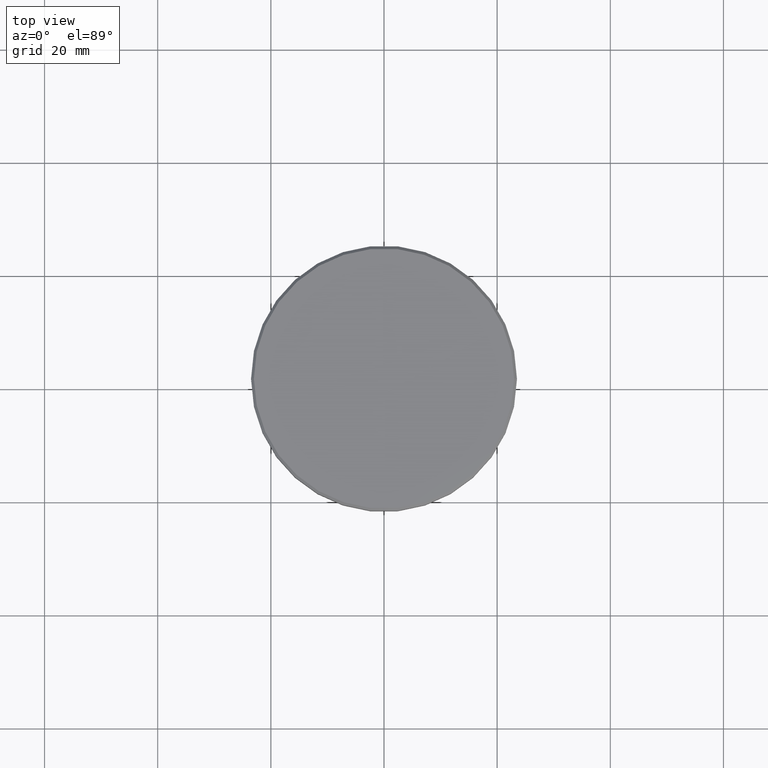
[diagram: clean part render]
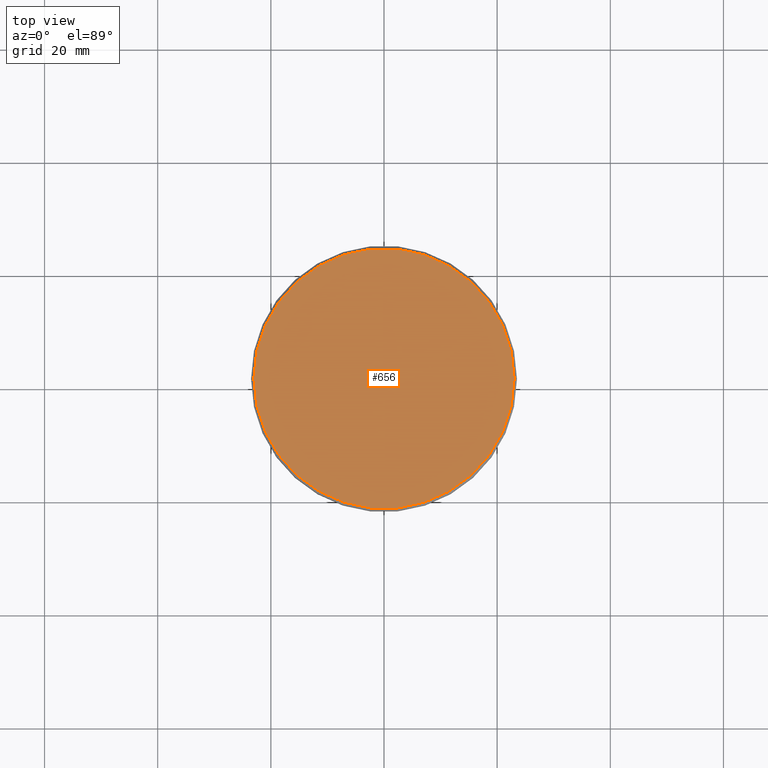
[diagram: same view with one face highlighted and labeled with its STEP entity id]
A machine part, top view. The second image highlights one B-rep face of the part: STEP entity #656.
In plain terms, the highlighted planar face has unit normal (0, -0, 1).
Its self-contained STEP definition (entity closure, byte-faithful):
#52 = AXIS2_PLACEMENT_3D ( 'NONE', #1025, #304, #110 ) ;
#110 = DIRECTION ( 'NONE',  ( 1.000000000000000000, 0.000000000000000000, 0.000000000000000000 ) ) ;
#114 = FACE_OUTER_BOUND ( 'NONE', #1066, .T. ) ;
#123 = DIRECTION ( 'NONE',  ( 1.000000000000000000, 0.000000000000000000, 0.000000000000000000 ) ) ;
#131 = CARTESIAN_POINT ( 'NONE',  ( 23.00000000000001066, 2.847303808017596928E-15, 0.000000000000000000 ) ) ;
#240 = ORIENTED_EDGE ( 'NONE', *, *, #463, .T. ) ;
#304 = DIRECTION ( 'NONE',  ( -0.000000000000000000, -0.000000000000000000, 1.000000000000000000 ) ) ;
#315 = DIRECTION ( 'NONE',  ( 1.000000000000000000, 0.000000000000000000, 0.000000000000000000 ) ) ;
#349 = CIRCLE ( 'NONE', #800, 23.00000000000001066 ) ;
#455 = CARTESIAN_POINT ( 'NONE',  ( -23.00000000000001066, 0.000000000000000000, 0.000000000000000000 ) ) ;
#463 = EDGE_CURVE ( 'NONE', #541, #838, #1040, .T. ) ;
#541 = VERTEX_POINT ( 'NONE', #131 ) ;
#579 = AXIS2_PLACEMENT_3D ( 'NONE', #1015, #590, #123 ) ;
#590 = DIRECTION ( 'NONE',  ( 0.000000000000000000, -0.000000000000000000, 1.000000000000000000 ) ) ;
#656 = ADVANCED_FACE ( 'NONE', ( #114 ), #663, .T. ) ;
#663 = PLANE ( 'NONE',  #579 ) ;
#768 = CARTESIAN_POINT ( 'NONE',  ( 0.000000000000000000, 0.000000000000000000, 0.000000000000000000 ) ) ;
#788 = EDGE_CURVE ( 'NONE', #838, #541, #349, .T. ) ;
#800 = AXIS2_PLACEMENT_3D ( 'NONE', #768, #1124, #315 ) ;
#838 = VERTEX_POINT ( 'NONE', #455 ) ;
#1015 = CARTESIAN_POINT ( 'NONE',  ( 0.000000000000000000, 0.000000000000000000, 0.000000000000000000 ) ) ;
#1025 = CARTESIAN_POINT ( 'NONE',  ( 0.000000000000000000, 0.000000000000000000, 0.000000000000000000 ) ) ;
#1040 = CIRCLE ( 'NONE', #52, 23.00000000000001066 ) ;
#1066 = EDGE_LOOP ( 'NONE', ( #1112, #240 ) ) ;
#1112 = ORIENTED_EDGE ( 'NONE', *, *, #788, .T. ) ;
#1124 = DIRECTION ( 'NONE',  ( -0.000000000000000000, -0.000000000000000000, 1.000000000000000000 ) ) ;